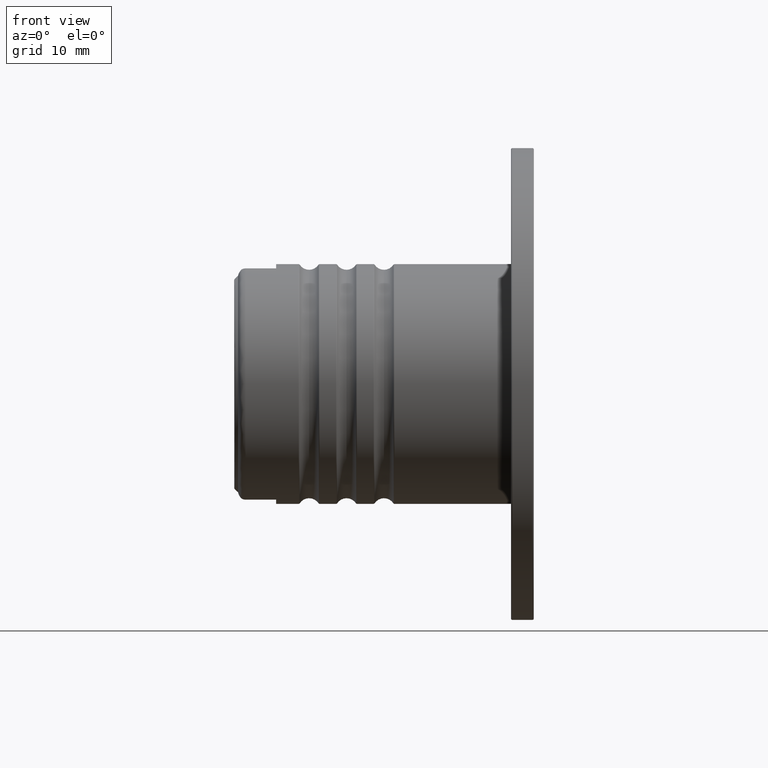
[diagram: clean part render]
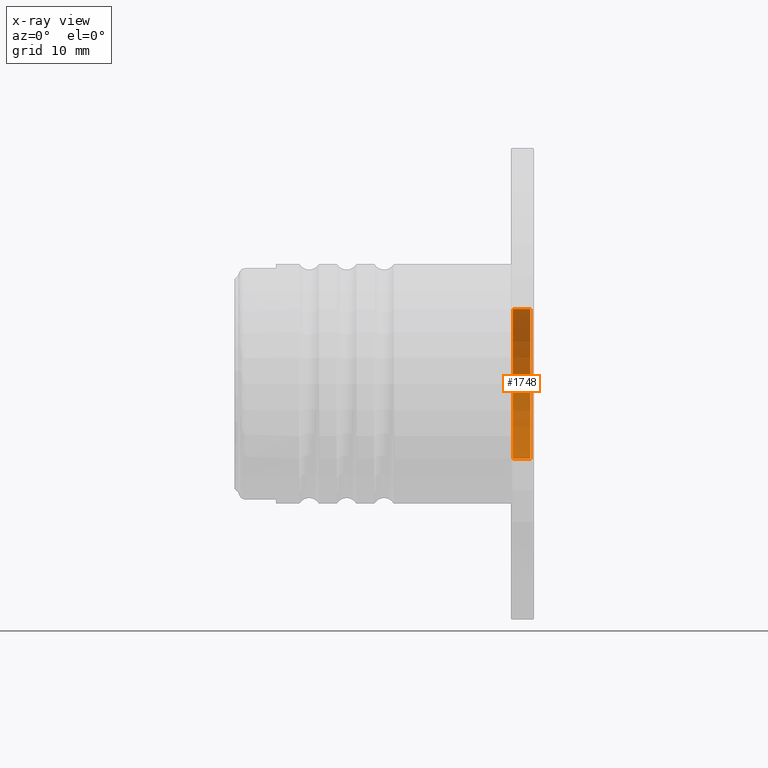
[diagram: x-ray — body ghosted, one internal face saturated and labeled with its STEP entity id]
A machine part, front view, then the same camera in x-ray: the body is ghosted and one INTERNAL B-rep face — a face not visible from any outside direction — is saturated and labeled: STEP entity #1748.
In plain terms, the highlighted cylindrical surface (partial cylindrical patch) has radius 10 mm, axis along (1, 0, 0).
Its self-contained STEP definition (entity closure, byte-faithful):
#43 = ORIENTED_EDGE ( 'NONE', *, *, #6341, .F. ) ;
#66 = CARTESIAN_POINT ( 'NONE',  ( 0.0000000000000000000, 0.0000000000000000000, 0.0000000000000000000 ) ) ;
#369 = EDGE_CURVE ( 'NONE', #1714, #4667, #5281, .T. ) ;
#802 = CARTESIAN_POINT ( 'NONE',  ( 0.0000000000000000000, 0.0000000000000000000, -10.00000000000000000 ) ) ;
#1009 = EDGE_CURVE ( 'NONE', #1099, #2130, #5973, .T. ) ;
#1099 = VERTEX_POINT ( 'NONE', #6235 ) ;
#1173 = AXIS2_PLACEMENT_3D ( 'NONE', #4006, #4552, #4023 ) ;
#1458 = CARTESIAN_POINT ( 'NONE',  ( -0.2000000000000000111, 1.224646799147353256E-15, 10.00000000000000000 ) ) ;
#1549 = LINE ( 'NONE', #3408, #5388 ) ;
#1624 = AXIS2_PLACEMENT_3D ( 'NONE', #1920, #2971, #2949 ) ;
#1714 = VERTEX_POINT ( 'NONE', #3217 ) ;
#1748 = ADVANCED_FACE ( 'NONE', ( #3418 ), #5132, .T. ) ;
#1920 = CARTESIAN_POINT ( 'NONE',  ( -0.2000000000000000111, 0.0000000000000000000, 0.0000000000000000000 ) ) ;
#1981 = ORIENTED_EDGE ( 'NONE', *, *, #1009, .F. ) ;
#2130 = VERTEX_POINT ( 'NONE', #1458 ) ;
#2216 = VECTOR ( 'NONE', #6121, 1000.000000000000000 ) ;
#2320 = EDGE_CURVE ( 'NONE', #4667, #2130, #1549, .T. ) ;
#2949 = DIRECTION ( 'NONE',  ( 0.0000000000000000000, 0.0000000000000000000, -1.000000000000000000 ) ) ;
#2971 = DIRECTION ( 'NONE',  ( 1.000000000000000000, -0.0000000000000000000, -0.0000000000000000000 ) ) ;
#3196 = DIRECTION ( 'NONE',  ( 1.000000000000000000, -0.0000000000000000000, -0.0000000000000000000 ) ) ;
#3217 = CARTESIAN_POINT ( 'NONE',  ( -2.500000000000000000, 0.0000000000000000000, -10.00000000000000000 ) ) ;
#3287 = AXIS2_PLACEMENT_3D ( 'NONE', #66, #3196, #6366 ) ;
#3408 = CARTESIAN_POINT ( 'NONE',  ( 0.0000000000000000000, 1.224646799147353256E-15, 10.00000000000000000 ) ) ;
#3418 = FACE_OUTER_BOUND ( 'NONE', #5465, .T. ) ;
#3505 = ORIENTED_EDGE ( 'NONE', *, *, #369, .T. ) ;
#4006 = CARTESIAN_POINT ( 'NONE',  ( -2.500000000000000000, 0.0000000000000000000, 0.0000000000000000000 ) ) ;
#4023 = DIRECTION ( 'NONE',  ( 0.0000000000000000000, 0.0000000000000000000, -1.000000000000000000 ) ) ;
#4201 = CARTESIAN_POINT ( 'NONE',  ( -2.500000000000000000, 1.224646799147353256E-15, 10.00000000000000000 ) ) ;
#4552 = DIRECTION ( 'NONE',  ( 1.000000000000000000, -0.0000000000000000000, -0.0000000000000000000 ) ) ;
#4667 = VERTEX_POINT ( 'NONE', #4201 ) ;
#4818 = ORIENTED_EDGE ( 'NONE', *, *, #2320, .T. ) ;
#4973 = LINE ( 'NONE', #802, #2216 ) ;
#5013 = DIRECTION ( 'NONE',  ( 1.000000000000000000, -0.0000000000000000000, -0.0000000000000000000 ) ) ;
#5132 = CYLINDRICAL_SURFACE ( 'NONE', #3287, 10.00000000000000000 ) ;
#5281 = CIRCLE ( 'NONE', #1173, 10.00000000000000000 ) ;
#5388 = VECTOR ( 'NONE', #5013, 1000.000000000000000 ) ;
#5465 = EDGE_LOOP ( 'NONE', ( #3505, #4818, #1981, #43 ) ) ;
#5973 = CIRCLE ( 'NONE', #1624, 10.00000000000000000 ) ;
#6121 = DIRECTION ( 'NONE',  ( 1.000000000000000000, -0.0000000000000000000, -0.0000000000000000000 ) ) ;
#6235 = CARTESIAN_POINT ( 'NONE',  ( -0.2000000000000000111, 0.0000000000000000000, -10.00000000000000000 ) ) ;
#6341 = EDGE_CURVE ( 'NONE', #1714, #1099, #4973, .T. ) ;
#6366 = DIRECTION ( 'NONE',  ( 0.0000000000000000000, 0.0000000000000000000, -1.000000000000000000 ) ) ;